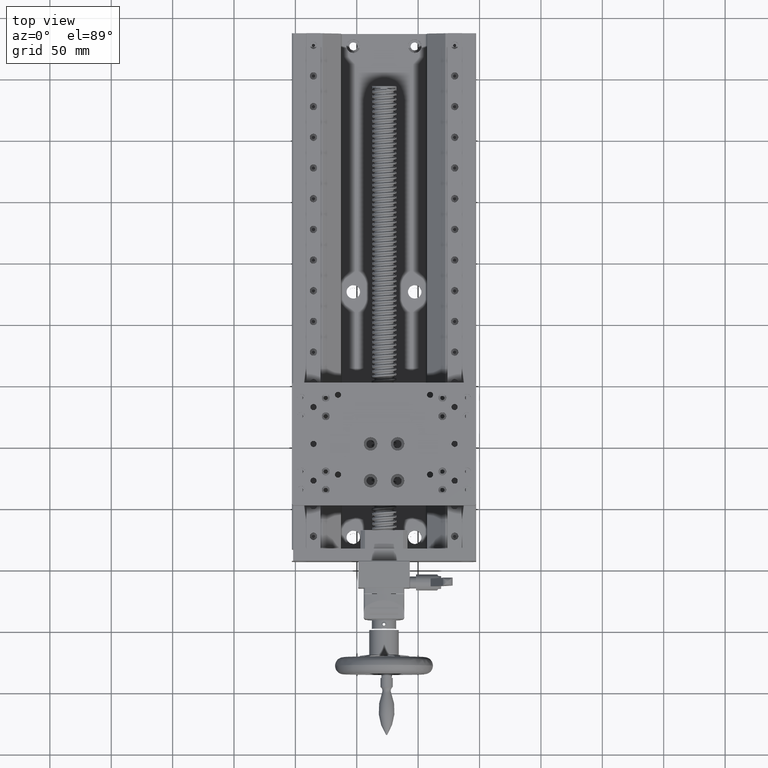
[diagram: clean part render]
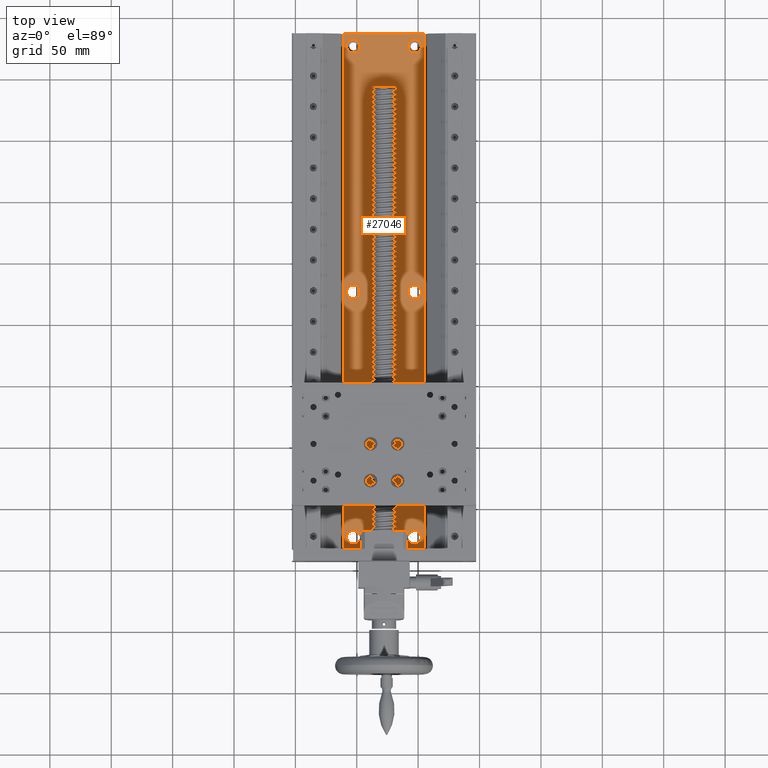
[diagram: same view with one face highlighted and labeled with its STEP entity id]
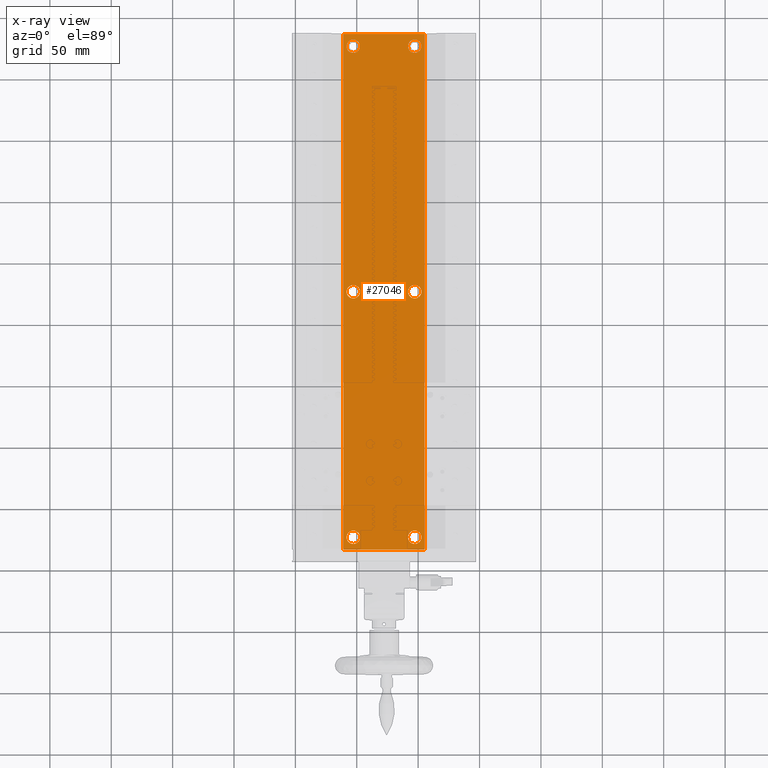
[diagram: x-ray of the same camera — body ghosted, the highlighted face saturated]
A machine part, top view. The second image highlights one B-rep face of the part: STEP entity #27046.
The next image is the same camera in x-ray: the body ghosted, the highlighted face saturated — about 0% of this face is hidden behind the body in this view.
In plain terms, the highlighted planar face has unit normal (0, 0, 1).
Its self-contained STEP definition (entity closure, byte-faithful):
#369 = DIRECTION ( 'NONE',  ( 3.491481338843133355E-15, 2.438088387897967896E-29, 1.000000000000000000 ) ) ;
#768 = VERTEX_POINT ( 'NONE', #5038 ) ;
#1327 = CARTESIAN_POINT ( 'NONE',  ( -2.826479479797102901, 271.4527354020910934, -10.00000000000156319 ) ) ;
#1432 = VERTEX_POINT ( 'NONE', #34811 ) ;
#1692 = VECTOR ( 'NONE', #44579, 1000.000000000000000 ) ;
#2169 = CARTESIAN_POINT ( 'NONE',  ( -2.826479479797741057, 82.45273540209116447, -10.00000000000156319 ) ) ;
#2192 = PLANE ( 'NONE',  #17593 ) ;
#2369 = VERTEX_POINT ( 'NONE', #47697 ) ;
#2490 = DIRECTION ( 'NONE',  ( 3.491481338843133355E-15, 2.438088387897967896E-29, 1.000000000000000000 ) ) ;
#2602 = VERTEX_POINT ( 'NONE', #38017 ) ;
#2838 = VERTEX_POINT ( 'NONE', #2169 ) ;
#4042 = VERTEX_POINT ( 'NONE', #9035 ) ;
#4274 = EDGE_CURVE ( 'NONE', #2369, #31508, #43622, .T. ) ;
#4301 = CARTESIAN_POINT ( 'NONE',  ( -2.826479479797083805, 276.9527354020910934, -10.00000000000156319 ) ) ;
#4679 = CARTESIAN_POINT ( 'NONE',  ( -2.826479479797749939, 76.95273540209116447, -10.00000000000156319 ) ) ;
#4721 = CARTESIAN_POINT ( 'NONE',  ( -52.82647947979707226, 276.9527354020912639, -10.00000000000156319 ) ) ;
#5038 = CARTESIAN_POINT ( 'NONE',  ( -52.82647947979844361, -117.5472645979086508, -10.00000000000156319 ) ) ;
#5111 = EDGE_CURVE ( 'NONE', #46580, #16605, #24640, .T. ) ;
#5185 = DIRECTION ( 'NONE',  ( 3.491481338843133355E-15, 2.438088387897967896E-29, 1.000000000000000000 ) ) ;
#5197 = LINE ( 'NONE', #20244, #40820 ) ;
#5447 = DIRECTION ( 'NONE',  ( -3.784851220313030003E-15, -1.000000000000000000, 0.000000000000000000 ) ) ;
#6122 = CIRCLE ( 'NONE', #33751, 5.500000000000005329 ) ;
#6277 = LINE ( 'NONE', #25303, #1692 ) ;
#7399 = DIRECTION ( 'NONE',  ( -3.469446951953610639E-15, -1.000000000000000000, 0.000000000000000000 ) ) ;
#8840 = AXIS2_PLACEMENT_3D ( 'NONE', #37073, #14319, #47979 ) ;
#8854 = VECTOR ( 'NONE', #9756, 1000.000000000000000 ) ;
#8885 = CARTESIAN_POINT ( 'NONE',  ( -60.82647947979930336, 286.9527354020913208, -10.00000000000156319 ) ) ;
#8909 = ORIENTED_EDGE ( 'NONE', *, *, #20112, .F. ) ;
#9035 = CARTESIAN_POINT ( 'NONE',  ( -52.82647947979705805, 282.4527354020912639, -10.00000000000156319 ) ) ;
#9280 = ORIENTED_EDGE ( 'NONE', *, *, #22877, .T. ) ;
#9756 = DIRECTION ( 'NONE',  ( 3.491481338843133355E-15, 1.000000000000000000, -3.657132581846951845E-29 ) ) ;
#9843 = EDGE_LOOP ( 'NONE', ( #8909, #21813 ) ) ;
#10023 = VERTEX_POINT ( 'NONE', #33505 ) ;
#10085 = CIRCLE ( 'NONE', #44818, 5.500000000000005329 ) ;
#10298 = EDGE_LOOP ( 'NONE', ( #22572, #38898, #34219, #9280 ) ) ;
#10312 = FACE_BOUND ( 'NONE', #36611, .T. ) ;
#10981 = DIRECTION ( 'NONE',  ( 3.491481338843133355E-15, 2.438088387897967896E-29, 1.000000000000000000 ) ) ;
#12249 = DIRECTION ( 'NONE',  ( -3.784851220313030003E-15, -1.000000000000000000, 0.000000000000000000 ) ) ;
#12264 = EDGE_CURVE ( 'NONE', #768, #23434, #6122, .T. ) ;
#12652 = VERTEX_POINT ( 'NONE', #1327 ) ;
#12826 = CARTESIAN_POINT ( 'NONE',  ( -2.826479479798471584, -123.0472645979088213, -10.00000000000156319 ) ) ;
#12931 = EDGE_CURVE ( 'NONE', #1432, #25142, #43055, .T. ) ;
#12994 = CARTESIAN_POINT ( 'NONE',  ( -60.82647947980074576, -133.0472645979086792, -10.00000000000156319 ) ) ;
#14110 = CARTESIAN_POINT ( 'NONE',  ( 5.173520520200702855, 286.9527354020910934, -10.00000000000156319 ) ) ;
#14209 = CIRCLE ( 'NONE', #35544, 5.500000000000005329 ) ;
#14210 = CARTESIAN_POINT ( 'NONE',  ( -52.82647947979707226, 276.9527354020912639, -10.00000000000156319 ) ) ;
#14319 = DIRECTION ( 'NONE',  ( 3.491481338843133355E-15, 2.438088387897967896E-29, 1.000000000000000000 ) ) ;
#14660 = VERTEX_POINT ( 'NONE', #47899 ) ;
#14704 = DIRECTION ( 'NONE',  ( -3.784851220313030003E-15, -1.000000000000000000, 0.000000000000000000 ) ) ;
#15912 = AXIS2_PLACEMENT_3D ( 'NONE', #4721, #31645, #5447 ) ;
#16543 = AXIS2_PLACEMENT_3D ( 'NONE', #32150, #2490, #47724 ) ;
#16605 = VERTEX_POINT ( 'NONE', #22792 ) ;
#16667 = DIRECTION ( 'NONE',  ( 3.491481338843133355E-15, 2.438088387897967896E-29, 1.000000000000000000 ) ) ;
#16812 = AXIS2_PLACEMENT_3D ( 'NONE', #14210, #48610, #14704 ) ;
#17060 = ORIENTED_EDGE ( 'NONE', *, *, #22455, .F. ) ;
#17250 = CARTESIAN_POINT ( 'NONE',  ( -52.82647947979774017, 76.95273540209132079, -10.00000000000156319 ) ) ;
#17593 = AXIS2_PLACEMENT_3D ( 'NONE', #32802, #32324, #43935 ) ;
#17928 = VERTEX_POINT ( 'NONE', #14110 ) ;
#17934 = CIRCLE ( 'NONE', #43991, 5.500000000000005329 ) ;
#18680 = ORIENTED_EDGE ( 'NONE', *, *, #48628, .F. ) ;
#18712 = CIRCLE ( 'NONE', #42411, 5.500000000000005329 ) ;
#19797 = EDGE_LOOP ( 'NONE', ( #46552, #40438 ) ) ;
#20050 = ORIENTED_EDGE ( 'NONE', *, *, #5111, .F. ) ;
#20112 = EDGE_CURVE ( 'NONE', #23434, #768, #17934, .T. ) ;
#20116 = CARTESIAN_POINT ( 'NONE',  ( -2.826479479798462702, -117.5472645979088213, -10.00000000000156319 ) ) ;
#20244 = CARTESIAN_POINT ( 'NONE',  ( 5.173520520199259565, -133.0472645979088782, -10.00000000000156319 ) ) ;
#20933 = FACE_BOUND ( 'NONE', #21504, .T. ) ;
#21184 = FACE_BOUND ( 'NONE', #32922, .T. ) ;
#21421 = FACE_OUTER_BOUND ( 'NONE', #10298, .T. ) ;
#21490 = AXIS2_PLACEMENT_3D ( 'NONE', #4679, #27157, #7399 ) ;
#21504 = EDGE_LOOP ( 'NONE', ( #17060, #42233 ) ) ;
#21728 = AXIS2_PLACEMENT_3D ( 'NONE', #39057, #45992, #26957 ) ;
#21813 = ORIENTED_EDGE ( 'NONE', *, *, #12264, .F. ) ;
#22455 = EDGE_CURVE ( 'NONE', #14660, #2838, #18712, .T. ) ;
#22572 = ORIENTED_EDGE ( 'NONE', *, *, #28256, .F. ) ;
#22792 = CARTESIAN_POINT ( 'NONE',  ( -2.826479479798490679, -128.5472645979088213, -10.00000000000156319 ) ) ;
#22877 = EDGE_CURVE ( 'NONE', #10023, #17928, #5197, .T. ) ;
#23434 = VERTEX_POINT ( 'NONE', #39481 ) ;
#23756 = CARTESIAN_POINT ( 'NONE',  ( -60.82647947979930336, 286.9527354020913208, -10.00000000000156319 ) ) ;
#23899 = CIRCLE ( 'NONE', #21490, 5.500000000000005329 ) ;
#24640 = CIRCLE ( 'NONE', #8840, 5.500000000000005329 ) ;
#25142 = VERTEX_POINT ( 'NONE', #33477 ) ;
#25173 = EDGE_CURVE ( 'NONE', #12652, #2602, #29123, .T. ) ;
#25303 = CARTESIAN_POINT ( 'NONE',  ( -60.82647947980074576, -133.0472645979086792, -10.00000000000156319 ) ) ;
#26080 = EDGE_CURVE ( 'NONE', #2838, #14660, #23899, .T. ) ;
#26268 = ORIENTED_EDGE ( 'NONE', *, *, #45906, .F. ) ;
#26796 = AXIS2_PLACEMENT_3D ( 'NONE', #4301, #369, #45341 ) ;
#26957 = DIRECTION ( 'NONE',  ( -3.784851220313030003E-15, -1.000000000000000000, 0.000000000000000000 ) ) ;
#27046 = ADVANCED_FACE ( 'NONE', ( #31852, #21184, #46949, #39509, #10312, #20933, #21421 ), #2192, .T. ) ;
#27157 = DIRECTION ( 'NONE',  ( 3.491481338843133355E-15, 2.438088387897967896E-29, 1.000000000000000000 ) ) ;
#27322 = DIRECTION ( 'NONE',  ( -3.469446951953610639E-15, -1.000000000000000000, 0.000000000000000000 ) ) ;
#27567 = VERTEX_POINT ( 'NONE', #47854 ) ;
#27779 = CIRCLE ( 'NONE', #15912, 5.500000000000005329 ) ;
#27863 = CIRCLE ( 'NONE', #16812, 5.500000000000005329 ) ;
#28256 = EDGE_CURVE ( 'NONE', #31508, #17928, #39329, .T. ) ;
#28396 = DIRECTION ( 'NONE',  ( -3.784851220313030003E-15, -1.000000000000000000, 0.000000000000000000 ) ) ;
#28743 = EDGE_CURVE ( 'NONE', #4042, #27567, #27863, .T. ) ;
#29123 = CIRCLE ( 'NONE', #26796, 5.500000000000005329 ) ;
#29507 = CARTESIAN_POINT ( 'NONE',  ( -52.82647947979845782, -123.0472645979086508, -10.00000000000156319 ) ) ;
#30048 = DIRECTION ( 'NONE',  ( 3.491481338843133355E-15, 2.438088387897967896E-29, 1.000000000000000000 ) ) ;
#30289 = CARTESIAN_POINT ( 'NONE',  ( -2.826479479797749939, 76.95273540209116447, -10.00000000000156319 ) ) ;
#30634 = DIRECTION ( 'NONE',  ( 3.491481338843133355E-15, 2.438088387897967896E-29, 1.000000000000000000 ) ) ;
#31508 = VERTEX_POINT ( 'NONE', #8885 ) ;
#31645 = DIRECTION ( 'NONE',  ( 3.491481338843133355E-15, 2.438088387897967896E-29, 1.000000000000000000 ) ) ;
#31780 = VECTOR ( 'NONE', #38847, 1000.000000000000000 ) ;
#31852 = FACE_BOUND ( 'NONE', #37950, .T. ) ;
#32150 = CARTESIAN_POINT ( 'NONE',  ( -2.826479479797083805, 276.9527354020910934, -10.00000000000156319 ) ) ;
#32324 = DIRECTION ( 'NONE',  ( 3.491481338843133355E-15, 2.438088387897967896E-29, 1.000000000000000000 ) ) ;
#32587 = EDGE_CURVE ( 'NONE', #2369, #10023, #6277, .T. ) ;
#32802 = CARTESIAN_POINT ( 'NONE',  ( -60.82647947980074576, -133.0472645979086792, -10.00000000000156319 ) ) ;
#32922 = EDGE_LOOP ( 'NONE', ( #37508, #20050 ) ) ;
#33074 = EDGE_CURVE ( 'NONE', #27567, #4042, #27779, .T. ) ;
#33477 = CARTESIAN_POINT ( 'NONE',  ( -52.82647947979776148, 71.45273540209132079, -10.00000000000156319 ) ) ;
#33505 = CARTESIAN_POINT ( 'NONE',  ( 5.173520520199259565, -133.0472645979088782, -10.00000000000156319 ) ) ;
#33751 = AXIS2_PLACEMENT_3D ( 'NONE', #34987, #16667, #12249 ) ;
#34219 = ORIENTED_EDGE ( 'NONE', *, *, #32587, .T. ) ;
#34811 = CARTESIAN_POINT ( 'NONE',  ( -52.82647947979772596, 82.45273540209133500, -10.00000000000156319 ) ) ;
#34987 = CARTESIAN_POINT ( 'NONE',  ( -52.82647947979845782, -123.0472645979086508, -10.00000000000156319 ) ) ;
#35354 = DIRECTION ( 'NONE',  ( 3.491481338843133355E-15, 1.000000000000000000, -3.657132581846951845E-29 ) ) ;
#35544 = AXIS2_PLACEMENT_3D ( 'NONE', #12826, #30634, #42496 ) ;
#36611 = EDGE_LOOP ( 'NONE', ( #26268, #36715 ) ) ;
#36715 = ORIENTED_EDGE ( 'NONE', *, *, #12931, .F. ) ;
#37073 = CARTESIAN_POINT ( 'NONE',  ( -2.826479479798471584, -123.0472645979088213, -10.00000000000156319 ) ) ;
#37508 = ORIENTED_EDGE ( 'NONE', *, *, #48913, .F. ) ;
#37865 = CIRCLE ( 'NONE', #16543, 5.500000000000005329 ) ;
#37950 = EDGE_LOOP ( 'NONE', ( #39993, #18680 ) ) ;
#38017 = CARTESIAN_POINT ( 'NONE',  ( -2.826479479797074923, 282.4527354020910934, -10.00000000000156319 ) ) ;
#38847 = DIRECTION ( 'NONE',  ( 1.000000000000000000, -3.491481338843133355E-15, -3.491481338843133355E-15 ) ) ;
#38898 = ORIENTED_EDGE ( 'NONE', *, *, #4274, .F. ) ;
#39057 = CARTESIAN_POINT ( 'NONE',  ( -52.82647947979774017, 76.95273540209132079, -10.00000000000156319 ) ) ;
#39329 = LINE ( 'NONE', #23756, #31780 ) ;
#39481 = CARTESIAN_POINT ( 'NONE',  ( -52.82647947979847913, -128.5472645979086508, -10.00000000000156319 ) ) ;
#39509 = FACE_BOUND ( 'NONE', #19797, .T. ) ;
#39993 = ORIENTED_EDGE ( 'NONE', *, *, #25173, .F. ) ;
#40438 = ORIENTED_EDGE ( 'NONE', *, *, #28743, .F. ) ;
#40820 = VECTOR ( 'NONE', #35354, 1000.000000000000000 ) ;
#40890 = DIRECTION ( 'NONE',  ( -3.784851220313030003E-15, -1.000000000000000000, 0.000000000000000000 ) ) ;
#42233 = ORIENTED_EDGE ( 'NONE', *, *, #26080, .F. ) ;
#42411 = AXIS2_PLACEMENT_3D ( 'NONE', #30289, #30048, #27322 ) ;
#42496 = DIRECTION ( 'NONE',  ( -3.469446951953610639E-15, -1.000000000000000000, 0.000000000000000000 ) ) ;
#43055 = CIRCLE ( 'NONE', #21728, 5.500000000000005329 ) ;
#43622 = LINE ( 'NONE', #12994, #8854 ) ;
#43935 = DIRECTION ( 'NONE',  ( -3.491481338843133355E-15, -1.000000000000000000, 3.657132581846951845E-29 ) ) ;
#43991 = AXIS2_PLACEMENT_3D ( 'NONE', #29507, #10981, #40890 ) ;
#44579 = DIRECTION ( 'NONE',  ( 1.000000000000000000, -3.491481338843133355E-15, -3.491481338843133355E-15 ) ) ;
#44818 = AXIS2_PLACEMENT_3D ( 'NONE', #17250, #5185, #28396 ) ;
#45341 = DIRECTION ( 'NONE',  ( -3.469446951953610639E-15, -1.000000000000000000, 0.000000000000000000 ) ) ;
#45906 = EDGE_CURVE ( 'NONE', #25142, #1432, #10085, .T. ) ;
#45992 = DIRECTION ( 'NONE',  ( 3.491481338843133355E-15, 2.438088387897967896E-29, 1.000000000000000000 ) ) ;
#46552 = ORIENTED_EDGE ( 'NONE', *, *, #33074, .F. ) ;
#46580 = VERTEX_POINT ( 'NONE', #20116 ) ;
#46949 = FACE_BOUND ( 'NONE', #9843, .T. ) ;
#47697 = CARTESIAN_POINT ( 'NONE',  ( -60.82647947980074576, -133.0472645979086792, -10.00000000000156319 ) ) ;
#47724 = DIRECTION ( 'NONE',  ( -3.469446951953610639E-15, -1.000000000000000000, 0.000000000000000000 ) ) ;
#47854 = CARTESIAN_POINT ( 'NONE',  ( -52.82647947979709357, 271.4527354020912639, -10.00000000000156319 ) ) ;
#47899 = CARTESIAN_POINT ( 'NONE',  ( -2.826479479797769034, 71.45273540209115026, -10.00000000000156319 ) ) ;
#47979 = DIRECTION ( 'NONE',  ( -3.469446951953610639E-15, -1.000000000000000000, 0.000000000000000000 ) ) ;
#48610 = DIRECTION ( 'NONE',  ( 3.491481338843133355E-15, 2.438088387897967896E-29, 1.000000000000000000 ) ) ;
#48628 = EDGE_CURVE ( 'NONE', #2602, #12652, #37865, .T. ) ;
#48913 = EDGE_CURVE ( 'NONE', #16605, #46580, #14209, .T. ) ;